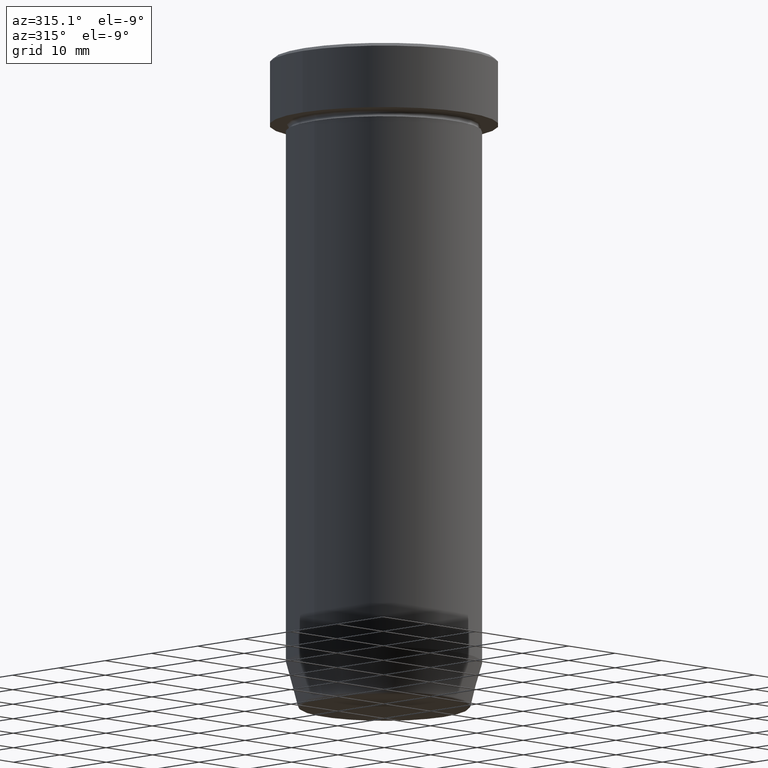
[diagram: clean part render]
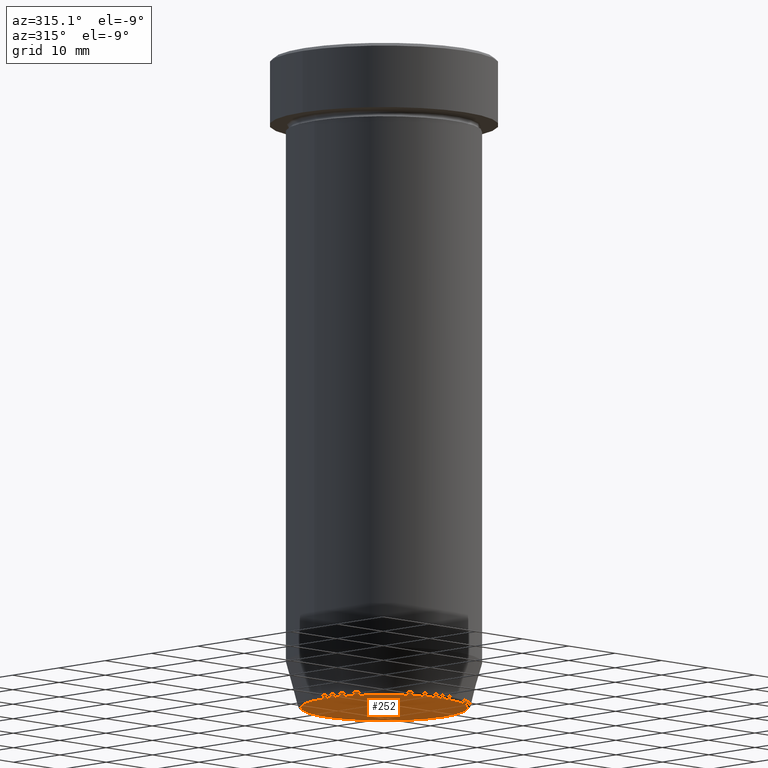
[diagram: same view with one face highlighted and labeled with its STEP entity id]
A machine part, auxiliary view. The second image highlights one B-rep face of the part: STEP entity #252.
In plain terms, the highlighted planar face has unit normal (0, -0, 1).
Its self-contained STEP definition (entity closure, byte-faithful):
#37 = AXIS2_PLACEMENT_3D ( 'NONE', #533, #165, #487 ) ;
#137 = DIRECTION ( 'NONE',  ( 1.000000000000000000, 0.000000000000000000, 0.000000000000000000 ) ) ;
#165 = DIRECTION ( 'NONE',  ( 0.000000000000000000, 0.000000000000000000, -1.000000000000000000 ) ) ;
#172 = CARTESIAN_POINT ( 'NONE',  ( -12.74069215899265473, 1.589857736427680246E-15, -100.0000000000000000 ) ) ;
#177 = EDGE_CURVE ( 'NONE', #360, #389, #332, .T. ) ;
#216 = EDGE_LOOP ( 'NONE', ( #403, #469 ) ) ;
#235 = PLANE ( 'NONE',  #367 ) ;
#252 = ADVANCED_FACE ( 'NONE', ( #365 ), #235, .F. ) ;
#266 = DIRECTION ( 'NONE',  ( 0.000000000000000000, 0.000000000000000000, -1.000000000000000000 ) ) ;
#277 = DIRECTION ( 'NONE',  ( 0.000000000000000000, -0.000000000000000000, 1.000000000000000000 ) ) ;
#319 = EDGE_CURVE ( 'NONE', #389, #360, #559, .T. ) ;
#332 = CIRCLE ( 'NONE', #393, 12.74069215899265473 ) ;
#360 = VERTEX_POINT ( 'NONE', #591 ) ;
#362 = CARTESIAN_POINT ( 'NONE',  ( 0.000000000000000000, 0.000000000000000000, -100.0000000000000000 ) ) ;
#365 = FACE_OUTER_BOUND ( 'NONE', #216, .T. ) ;
#367 = AXIS2_PLACEMENT_3D ( 'NONE', #548, #277, #137 ) ;
#389 = VERTEX_POINT ( 'NONE', #172 ) ;
#393 = AXIS2_PLACEMENT_3D ( 'NONE', #362, #266, #539 ) ;
#403 = ORIENTED_EDGE ( 'NONE', *, *, #177, .T. ) ;
#469 = ORIENTED_EDGE ( 'NONE', *, *, #319, .T. ) ;
#487 = DIRECTION ( 'NONE',  ( 1.000000000000000000, 0.000000000000000000, 0.000000000000000000 ) ) ;
#533 = CARTESIAN_POINT ( 'NONE',  ( 0.000000000000000000, 0.000000000000000000, -100.0000000000000000 ) ) ;
#539 = DIRECTION ( 'NONE',  ( 1.000000000000000000, 0.000000000000000000, 0.000000000000000000 ) ) ;
#548 = CARTESIAN_POINT ( 'NONE',  ( 0.000000000000000000, 6.123233995736767663E-15, -100.0000000000000000 ) ) ;
#559 = CIRCLE ( 'NONE', #37, 12.74069215899265473 ) ;
#591 = CARTESIAN_POINT ( 'NONE',  ( 12.74069215899265473, 0.000000000000000000, -100.0000000000000000 ) ) ;